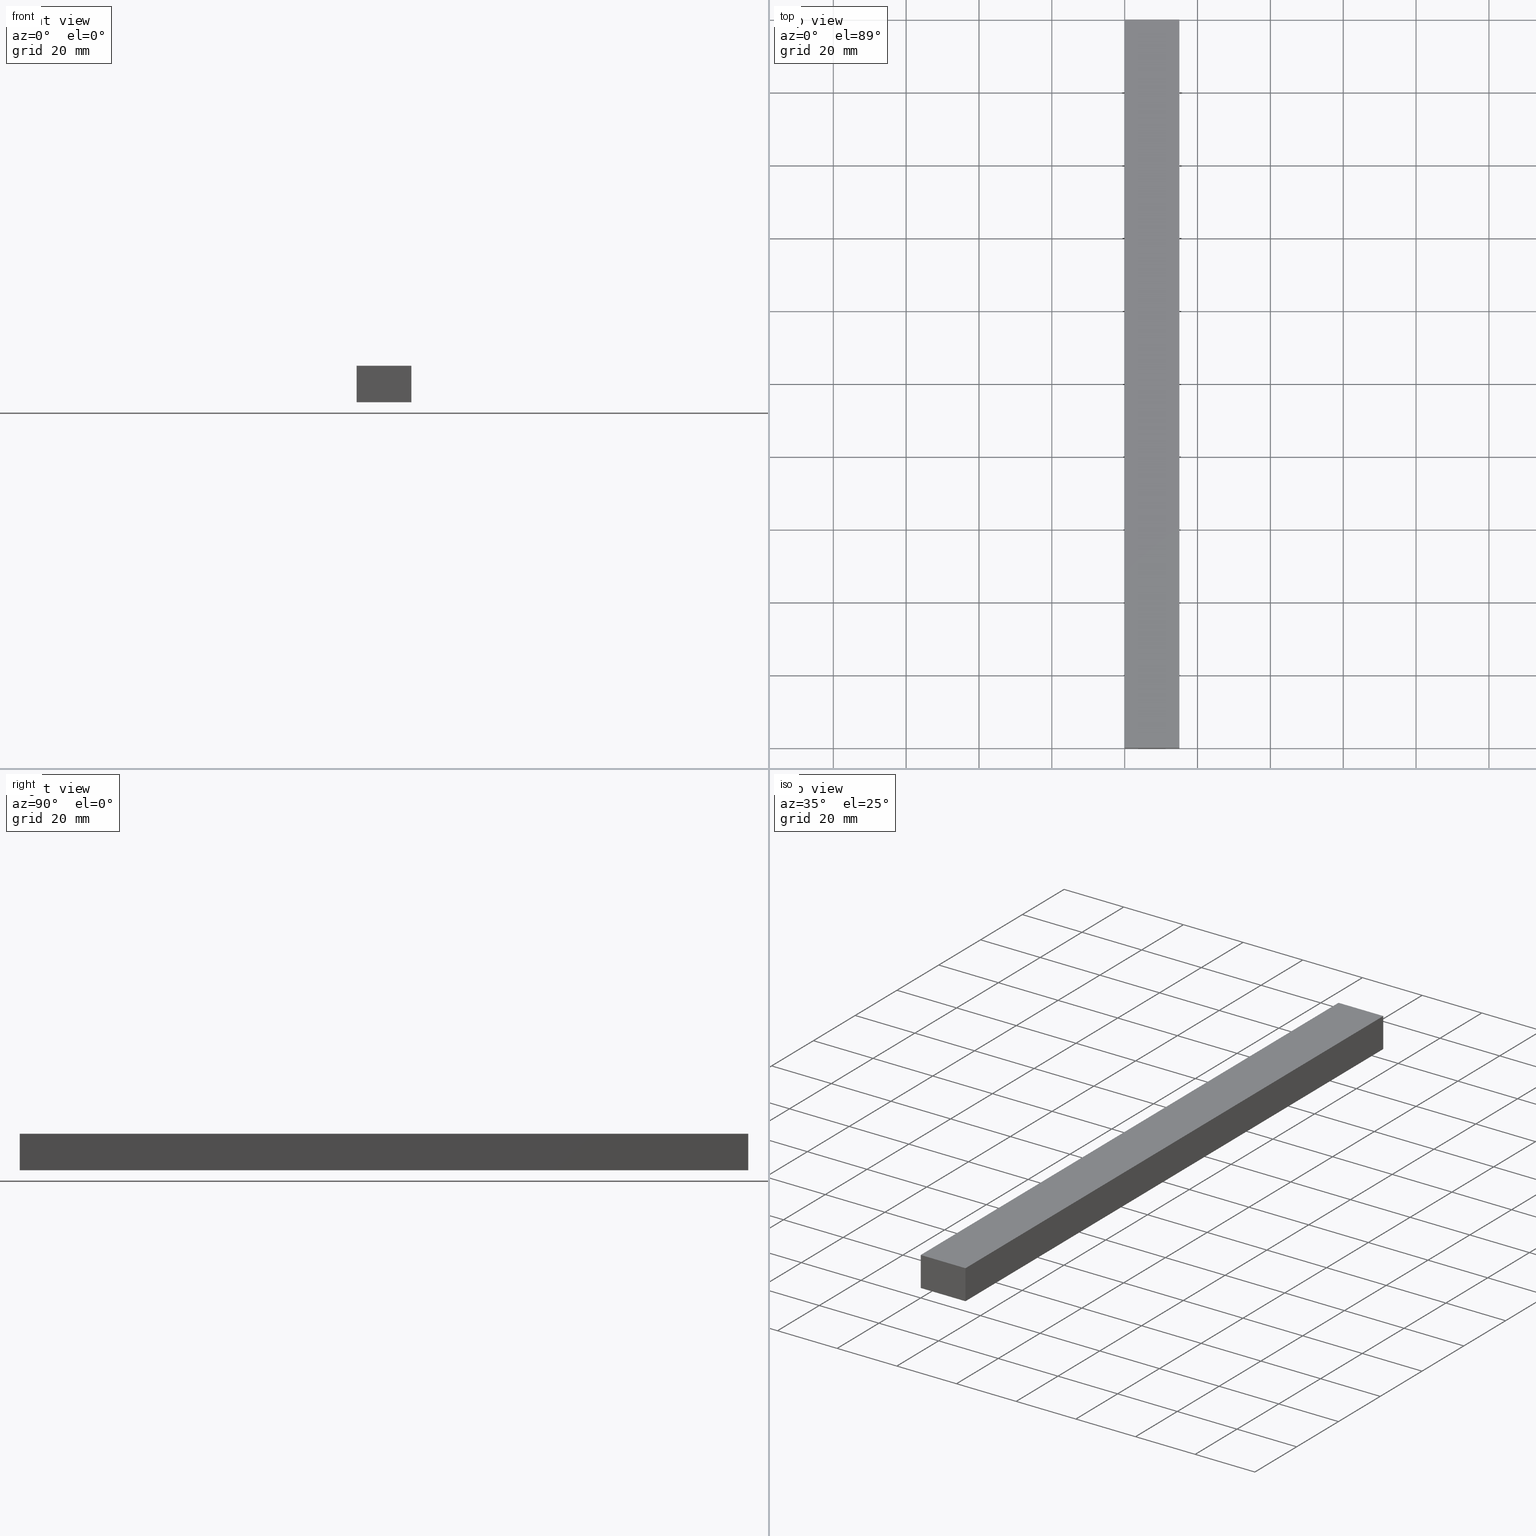
[diagram: canonical four-view strip — front | top / right | iso, engineering-drawing reading convention]
A machine part, canonical four-view strip (front | top / right | iso — engineering-drawing reading convention). The complete STEP part file that produces these views, byte-faithful:
ISO-10303-21;
HEADER;
FILE_DESCRIPTION (( 'STEP AP214' ),
    '1' );
FILE_NAME ('TM_340W_8.STEP',
    '2016-05-09T07:29:31',
    ( '' ),
    ( '' ),
    'SwSTEP 2.0',
    'SolidWorks 2015',
    '' );
FILE_SCHEMA (( 'AUTOMOTIVE_DESIGN' ));
ENDSEC;

DATA;
#1 = ORIENTED_EDGE ( 'NONE', *, *, #122, .F. ) ;
#2 = APPLICATION_CONTEXT ( 'automotive_design' ) ;
#3 = EDGE_CURVE ( 'NONE', #49, #201, #164, .T. ) ;
#4 = EDGE_CURVE ( 'NONE', #197, #187, #140, .T. ) ;
#5 = APPLICATION_CONTEXT ( 'automotive_design' ) ;
#6 = LINE ( 'NONE', #162, #161 ) ;
#7 = VERTEX_POINT ( 'NONE', #188 ) ;
#8 = SHAPE_DEFINITION_REPRESENTATION ( #23, #170 ) ;
#9 = DIRECTION ( 'NONE',  ( -0.0000000000000000000, -0.0000000000000000000, 1.000000000000000000 ) ) ;
#10 = ORIENTED_EDGE ( 'NONE', *, *, #231, .F. ) ;
#11 = ADVANCED_BREP_SHAPE_REPRESENTATION ( '', ( #200, #215 ), #208 ) ;
#12 = ADVANCED_FACE ( 'NONE', ( #210 ), #29, .F. ) ;
#13 = EDGE_LOOP ( 'NONE', ( #52, #1, #153, #193 ) ) ;
#14 = LINE ( 'NONE', #54, #176 ) ;
#15 = CARTESIAN_POINT ( 'NONE',  ( 15.00000000000000000, 1000.000000000000000, 0.0000000000000000000 ) ) ;
#16 = CARTESIAN_POINT ( 'NONE',  ( 0.0000000000000000000, 200.0000000000000000, 0.0000000000000000000 ) ) ;
#17 = DIRECTION ( 'NONE',  ( 0.0000000000000000000, 0.0000000000000000000, 1.000000000000000000 ) ) ;
#18 = ORIENTED_EDGE ( 'NONE', *, *, #185, .F. ) ;
#19 = PRESENTATION_STYLE_ASSIGNMENT (( #93 ) ) ;
#20 = VECTOR ( 'NONE', #237, 1000.000000000000000 ) ;
#21 = STYLED_ITEM ( 'NONE', ( #33 ), #11 ) ;
#22 = SURFACE_STYLE_FILL_AREA ( #43 ) ;
#23 = PRODUCT_DEFINITION_SHAPE ( 'NONE', 'NONE',  #102 ) ;
#24 = VECTOR ( 'NONE', #192, 1000.000000000000000 ) ;
#25 = CARTESIAN_POINT ( 'NONE',  ( 0.0000000000000000000, 1000.000000000000000, 10.00000000000000000 ) ) ;
#26 = ADVANCED_FACE ( 'NONE', ( #157 ), #90, .T. ) ;
#27 = DIRECTION ( 'NONE',  ( 0.0000000000000000000, 0.0000000000000000000, 1.000000000000000000 ) ) ;
#28 =( LENGTH_UNIT ( ) NAMED_UNIT ( * ) SI_UNIT ( .MILLI., .METRE. ) );
#29 = PLANE ( 'NONE',  #163 ) ;
#30 = VERTEX_POINT ( 'NONE', #61 ) ;
#31 = CARTESIAN_POINT ( 'NONE',  ( 0.0000000000000000000, 0.0000000000000000000, 0.0000000000000000000 ) ) ;
#32 = AXIS2_PLACEMENT_3D ( 'NONE', #238, #17, #174 ) ;
#33 = PRESENTATION_STYLE_ASSIGNMENT (( #47 ) ) ;
#34 = ORIENTED_EDGE ( 'NONE', *, *, #85, .T. ) ;
#35 = PRODUCT_DEFINITION_FORMATION_WITH_SPECIFIED_SOURCE ( 'ANY', '', #50, .NOT_KNOWN. ) ;
#36 = VECTOR ( 'NONE', #136, 1000.000000000000000 ) ;
#37 = SHAPE_REPRESENTATION_RELATIONSHIP ( 'NONE' , 'NONE' ,  #97, #11 ) ;
#38 = DIRECTION ( 'NONE',  ( 1.000000000000000000, -0.0000000000000000000, -0.0000000000000000000 ) ) ;
#39 = AXIS2_PLACEMENT_3D ( 'NONE', #25, #184, #77 ) ;
#40 = AXIS2_PLACEMENT_3D ( 'NONE', #31, #171, #196 ) ;
#41 = VECTOR ( 'NONE', #194, 1000.000000000000000 ) ;
#42 = ADVANCED_FACE ( 'NONE', ( #177 ), #186, .T. ) ;
#43 = FILL_AREA_STYLE ('',( #216 ) ) ;
#44 = CARTESIAN_POINT ( 'NONE',  ( 0.0000000000000000000, 0.0000000000000000000, 10.00000000000000000 ) ) ;
#45 = CARTESIAN_POINT ( 'NONE',  ( 0.0000000000000000000, 0.0000000000000000000, 0.0000000000000000000 ) ) ;
#46 =( NAMED_UNIT ( * ) PLANE_ANGLE_UNIT ( ) SI_UNIT ( $, .RADIAN. ) );
#47 = SURFACE_STYLE_USAGE ( .BOTH. , #195 ) ;
#48 = DIRECTION ( 'NONE',  ( 0.0000000000000000000, 0.0000000000000000000, 1.000000000000000000 ) ) ;
#49 = VERTEX_POINT ( 'NONE', #58 ) ;
#50 = PRODUCT ( 'rubber foam', 'rubber foam', '', ( #131 ) ) ;
#51 = LINE ( 'NONE', #84, #126 ) ;
#52 = ORIENTED_EDGE ( 'NONE', *, *, #179, .F. ) ;
#53 = EDGE_LOOP ( 'NONE', ( #129, #92, #34, #106 ) ) ;
#54 = CARTESIAN_POINT ( 'NONE',  ( 15.00000000000000000, 200.0000000000000000, 0.0000000000000000000 ) ) ;
#55 = DIRECTION ( 'NONE',  ( 1.000000000000000000, 0.0000000000000000000, 0.0000000000000000000 ) ) ;
#56 = LINE ( 'NONE', #141, #108 ) ;
#57 = CARTESIAN_POINT ( 'NONE',  ( 0.0000000000000000000, 1000.000000000000000, 0.0000000000000000000 ) ) ;
#58 = CARTESIAN_POINT ( 'NONE',  ( 0.0000000000000000000, 200.0000000000000000, 10.00000000000000000 ) ) ;
#59 = VERTEX_POINT ( 'NONE', #211 ) ;
#60 = CARTESIAN_POINT ( 'NONE',  ( 0.0000000000000000000, 0.0000000000000000000, 0.0000000000000000000 ) ) ;
#61 = CARTESIAN_POINT ( 'NONE',  ( 15.00000000000000000, 0.0000000000000000000, 10.00000000000000000 ) ) ;
#62 = AXIS2_PLACEMENT_3D ( 'NONE', #15, #228, #227 ) ;
#63 = COLOUR_RGB ( '',0.7921568627450980000, 0.8196078431372548800, 0.9333333333333333500 ) ;
#64 = UNCERTAINTY_MEASURE_WITH_UNIT (LENGTH_MEASURE( 1.000000000000000100E-005 ), #28, 'distance_accuracy_value', 'NONE');
#65 = PLANE ( 'NONE',  #39 ) ;
#66 =( LENGTH_UNIT ( ) NAMED_UNIT ( * ) SI_UNIT ( .MILLI., .METRE. ) );
#67 = DIRECTION ( 'NONE',  ( -0.0000000000000000000, 1.000000000000000000, 0.0000000000000000000 ) ) ;
#68 =( LENGTH_UNIT ( ) NAMED_UNIT ( * ) SI_UNIT ( .MILLI., .METRE. ) );
#69 = LINE ( 'NONE', #152, #41 ) ;
#70 = ADVANCED_FACE ( 'NONE', ( #234 ), #133, .T. ) ;
#71 = PRESENTATION_LAYER_ASSIGNMENT (  '', '', ( #212 ) ) ;
#72 = LINE ( 'NONE', #74, #101 ) ;
#73 = EDGE_LOOP ( 'NONE', ( #114, #145, #147, #110 ) ) ;
#74 = CARTESIAN_POINT ( 'NONE',  ( 0.0000000000000000000, 200.0000000000000000, 0.0000000000000000000 ) ) ;
#75 = CARTESIAN_POINT ( 'NONE',  ( 15.00000000000000000, 200.0000000000000000, 0.0000000000000000000 ) ) ;
#76 = EDGE_CURVE ( 'NONE', #7, #49, #69, .T. ) ;
#77 = DIRECTION ( 'NONE',  ( 0.0000000000000000000, 0.0000000000000000000, 1.000000000000000000 ) ) ;
#78 = ORIENTED_EDGE ( 'NONE', *, *, #226, .F. ) ;
#79 = AXIS2_PLACEMENT_3D ( 'NONE', #111, #180, #55 ) ;
#80 =( NAMED_UNIT ( * ) SI_UNIT ( $, .STERADIAN. ) SOLID_ANGLE_UNIT ( ) );
#81 = ITEM_DEFINED_TRANSFORMATION ( 'NONE', 'NONE', #40,  #215 ) ;
#82 =( NAMED_UNIT ( * ) SI_UNIT ( $, .STERADIAN. ) SOLID_ANGLE_UNIT ( ) );
#83 = VECTOR ( 'NONE', #91, 1000.000000000000000 ) ;
#84 = CARTESIAN_POINT ( 'NONE',  ( 15.00000000000000000, 0.0000000000000000000, 0.0000000000000000000 ) ) ;
#85 = EDGE_CURVE ( 'NONE', #30, #201, #6, .T. ) ;
#86 = APPLICATION_CONTEXT ( 'automotive_design' ) ;
#87 =( REPRESENTATION_RELATIONSHIP ('NONE','NONE', #170, #97 ) REPRESENTATION_RELATIONSHIP_WITH_TRANSFORMATION ( #81 )SHAPE_REPRESENTATION_RELATIONSHIP( ) );
#88 = VERTEX_POINT ( 'NONE', #75 ) ;
#89 = SHAPE_DEFINITION_REPRESENTATION ( #203, #97 ) ;
#90 = PLANE ( 'NONE',  #181 ) ;
#91 = DIRECTION ( 'NONE',  ( 0.0000000000000000000, -1.000000000000000000, 0.0000000000000000000 ) ) ;
#92 = ORIENTED_EDGE ( 'NONE', *, *, #179, .T. ) ;
#93 = SURFACE_STYLE_USAGE ( .BOTH. , #224 ) ;
#94 = CLOSED_SHELL ( 'NONE', ( #26, #42, #70, #149, #232, #12 ) ) ;
#95 = EDGE_CURVE ( 'NONE', #49, #197, #72, .T. ) ;
#96 = DIRECTION ( 'NONE',  ( -0.0000000000000000000, -0.0000000000000000000, -1.000000000000000000 ) ) ;
#97 = SHAPE_REPRESENTATION ( 'rubber foam', ( #215 ), #208 ) ;
#98 = DIRECTION ( 'NONE',  ( 0.0000000000000000000, 0.0000000000000000000, 1.000000000000000000 ) ) ;
#99 = AXIS2_PLACEMENT_3D ( 'NONE', #139, #98, #204 ) ;
#100 = CARTESIAN_POINT ( 'NONE',  ( 0.0000000000000000000, 1000.000000000000000, 0.0000000000000000000 ) ) ;
#101 = VECTOR ( 'NONE', #96, 1000.000000000000000 ) ;
#102 = PRODUCT_DEFINITION ( 'UNKNOWN', '', #120, #119 ) ;
#103 = CARTESIAN_POINT ( 'NONE',  ( 15.00000000000000000, 1000.000000000000000, 10.00000000000000000 ) ) ;
#104 = APPLICATION_CONTEXT ( 'automotive_design' ) ;
#105 =( NAMED_UNIT ( * ) PLANE_ANGLE_UNIT ( ) SI_UNIT ( $, .RADIAN. ) );
#106 = ORIENTED_EDGE ( 'NONE', *, *, #226, .T. ) ;
#107 =( GEOMETRIC_REPRESENTATION_CONTEXT ( 3 ) GLOBAL_UNCERTAINTY_ASSIGNED_CONTEXT ( ( #169 ) ) GLOBAL_UNIT_ASSIGNED_CONTEXT ( ( #66, #105, #117 ) ) REPRESENTATION_CONTEXT ( 'NONE', 'WORKASPACE' ) );
#108 = VECTOR ( 'NONE', #116, 1000.000000000000000 ) ;
#109 = ORIENTED_EDGE ( 'NONE', *, *, #122, .T. ) ;
#110 = ORIENTED_EDGE ( 'NONE', *, *, #3, .T. ) ;
#111 = CARTESIAN_POINT ( 'NONE',  ( 0.0000000000000000000, 200.0000000000000000, 0.0000000000000000000 ) ) ;
#112 = UNCERTAINTY_MEASURE_WITH_UNIT (LENGTH_MEASURE( 1.000000000000000100E-005 ), #235, 'distance_accuracy_value', 'NONE');
#113 = CARTESIAN_POINT ( 'NONE',  ( 15.00000000000000000, 1000.000000000000000, 0.0000000000000000000 ) ) ;
#114 = ORIENTED_EDGE ( 'NONE', *, *, #85, .F. ) ;
#115 = CARTESIAN_POINT ( 'NONE',  ( 0.0000000000000000000, 0.0000000000000000000, 0.0000000000000000000 ) ) ;
#116 = DIRECTION ( 'NONE',  ( 1.000000000000000000, -0.0000000000000000000, -0.0000000000000000000 ) ) ;
#117 =( NAMED_UNIT ( * ) SI_UNIT ( $, .STERADIAN. ) SOLID_ANGLE_UNIT ( ) );
#118 = ORIENTED_EDGE ( 'NONE', *, *, #4, .F. ) ;
#119 = PRODUCT_DEFINITION_CONTEXT ( 'detailed design', #5, 'design' ) ;
#120 = PRODUCT_DEFINITION_FORMATION_WITH_SPECIFIED_SOURCE ( 'ANY', '', #127, .NOT_KNOWN. ) ;
#121 =( GEOMETRIC_REPRESENTATION_CONTEXT ( 3 ) GLOBAL_UNCERTAINTY_ASSIGNED_CONTEXT ( ( #112 ) ) GLOBAL_UNIT_ASSIGNED_CONTEXT ( ( #235, #166, #82 ) ) REPRESENTATION_CONTEXT ( 'NONE', 'WORKASPACE' ) );
#122 = EDGE_CURVE ( 'NONE', #88, #59, #168, .T. ) ;
#123 = APPLICATION_PROTOCOL_DEFINITION ( 'draft international standard', 'automotive_design', 1998, #104 ) ;
#124 =( GEOMETRIC_REPRESENTATION_CONTEXT ( 3 ) GLOBAL_UNCERTAINTY_ASSIGNED_CONTEXT ( ( #214 ) ) GLOBAL_UNIT_ASSIGNED_CONTEXT ( ( #68, #220, #143 ) ) REPRESENTATION_CONTEXT ( 'NONE', 'WORKASPACE' ) );
#125 = VECTOR ( 'NONE', #229, 1000.000000000000000 ) ;
#126 = VECTOR ( 'NONE', #132, 1000.000000000000000 ) ;
#127 = PRODUCT ( 'TM_340W_8', 'TM_340W_8', '', ( #223 ) ) ;
#128 = PRODUCT_RELATED_PRODUCT_CATEGORY ( 'part', '', ( #50 ) ) ;
#129 = ORIENTED_EDGE ( 'NONE', *, *, #191, .T. ) ;
#130 = APPLICATION_PROTOCOL_DEFINITION ( 'draft international standard', 'automotive_design', 1998, #86 ) ;
#131 = PRODUCT_CONTEXT ( 'NONE', #104, 'mechanical' ) ;
#132 = DIRECTION ( 'NONE',  ( -0.0000000000000000000, -0.0000000000000000000, 1.000000000000000000 ) ) ;
#133 = PLANE ( 'NONE',  #99 ) ;
#134 = ORIENTED_EDGE ( 'NONE', *, *, #95, .T. ) ;
#135 = CARTESIAN_POINT ( 'NONE',  ( 0.0000000000000000000, 1000.000000000000000, 10.00000000000000000 ) ) ;
#136 = DIRECTION ( 'NONE',  ( 0.0000000000000000000, -1.000000000000000000, 0.0000000000000000000 ) ) ;
#137 = FILL_AREA_STYLE_COLOUR ( '', #63 ) ;
#138 = DIRECTION ( 'NONE',  ( -1.000000000000000000, 0.0000000000000000000, 0.0000000000000000000 ) ) ;
#139 = CARTESIAN_POINT ( 'NONE',  ( 15.00000000000000000, 1000.000000000000000, 10.00000000000000000 ) ) ;
#140 = LINE ( 'NONE', #57, #24 ) ;
#141 = CARTESIAN_POINT ( 'NONE',  ( 0.0000000000000000000, 200.0000000000000000, 0.0000000000000000000 ) ) ;
#142 = ORIENTED_EDGE ( 'NONE', *, *, #4, .T. ) ;
#143 =( NAMED_UNIT ( * ) SI_UNIT ( $, .STERADIAN. ) SOLID_ANGLE_UNIT ( ) );
#144 = ORIENTED_EDGE ( 'NONE', *, *, #95, .F. ) ;
#145 = ORIENTED_EDGE ( 'NONE', *, *, #205, .F. ) ;
#146 = PRODUCT_RELATED_PRODUCT_CATEGORY ( 'part', '', ( #127 ) ) ;
#147 = ORIENTED_EDGE ( 'NONE', *, *, #76, .T. ) ;
#148 = PRESENTATION_LAYER_ASSIGNMENT (  '', '', ( #21 ) ) ;
#149 = ADVANCED_FACE ( 'NONE', ( #150 ), #65, .T. ) ;
#150 = FACE_OUTER_BOUND ( 'NONE', #221, .T. ) ;
#151 = DIRECTION ( 'NONE',  ( 0.0000000000000000000, 0.0000000000000000000, -1.000000000000000000 ) ) ;
#152 = CARTESIAN_POINT ( 'NONE',  ( 0.0000000000000000000, 200.0000000000000000, 10.00000000000000000 ) ) ;
#153 = ORIENTED_EDGE ( 'NONE', *, *, #231, .T. ) ;
#154 = SURFACE_STYLE_FILL_AREA ( #155 ) ;
#155 = FILL_AREA_STYLE ('',( #137 ) ) ;
#156 = DIRECTION ( 'NONE',  ( 1.000000000000000000, 0.0000000000000000000, 0.0000000000000000000 ) ) ;
#157 = FACE_OUTER_BOUND ( 'NONE', #222, .T. ) ;
#158 = APPLICATION_PROTOCOL_DEFINITION ( 'draft international standard', 'automotive_design', 1998, #5 ) ;
#159 = PRODUCT_DEFINITION_SHAPE ( 'NONE', 'NONE',  #239 ) ;
#160 = ORIENTED_EDGE ( 'NONE', *, *, #3, .F. ) ;
#161 = VECTOR ( 'NONE', #209, 1000.000000000000000 ) ;
#162 = CARTESIAN_POINT ( 'NONE',  ( 0.0000000000000000000, 0.0000000000000000000, 10.00000000000000000 ) ) ;
#163 = AXIS2_PLACEMENT_3D ( 'NONE', #189, #67, #182 ) ;
#164 = LINE ( 'NONE', #135, #20 ) ;
#165 = PRODUCT_DEFINITION_CONTEXT ( 'detailed design', #86, 'design' ) ;
#166 =( NAMED_UNIT ( * ) PLANE_ANGLE_UNIT ( ) SI_UNIT ( $, .RADIAN. ) );
#167 = LINE ( 'NONE', #103, #83 ) ;
#168 = LINE ( 'NONE', #113, #36 ) ;
#169 = UNCERTAINTY_MEASURE_WITH_UNIT (LENGTH_MEASURE( 1.000000000000000100E-005 ), #66, 'distance_accuracy_value', 'NONE');
#170 = SHAPE_REPRESENTATION ( 'TM_340W_8', ( #213, #40 ), #107 ) ;
#171 = DIRECTION ( 'NONE',  ( 0.0000000000000000000, 0.0000000000000000000, 1.000000000000000000 ) ) ;
#172 = EDGE_LOOP ( 'NONE', ( #18, #144, #230, #10 ) ) ;
#173 = DIRECTION ( 'NONE',  ( 1.000000000000000000, 0.0000000000000000000, 0.0000000000000000000 ) ) ;
#174 = DIRECTION ( 'NONE',  ( 1.000000000000000000, 0.0000000000000000000, 0.0000000000000000000 ) ) ;
#175 = APPLICATION_PROTOCOL_DEFINITION ( 'draft international standard', 'automotive_design', 1998, #2 ) ;
#176 = VECTOR ( 'NONE', #9, 1000.000000000000000 ) ;
#177 = FACE_OUTER_BOUND ( 'NONE', #13, .T. ) ;
#178 = ORIENTED_EDGE ( 'NONE', *, *, #191, .F. ) ;
#179 = EDGE_CURVE ( 'NONE', #59, #30, #51, .T. ) ;
#180 = DIRECTION ( 'NONE',  ( -0.0000000000000000000, 1.000000000000000000, 0.0000000000000000000 ) ) ;
#181 = AXIS2_PLACEMENT_3D ( 'NONE', #100, #151, #138 ) ;
#182 = DIRECTION ( 'NONE',  ( 1.000000000000000000, 0.0000000000000000000, 0.0000000000000000000 ) ) ;
#183 = MECHANICAL_DESIGN_GEOMETRIC_PRESENTATION_REPRESENTATION (  '', ( #212 ), #121 ) ;
#184 = DIRECTION ( 'NONE',  ( -1.000000000000000000, 0.0000000000000000000, 0.0000000000000000000 ) ) ;
#185 = EDGE_CURVE ( 'NONE', #197, #88, #56, .T. ) ;
#186 = PLANE ( 'NONE',  #62 ) ;
#187 = VERTEX_POINT ( 'NONE', #45 ) ;
#188 = CARTESIAN_POINT ( 'NONE',  ( 15.00000000000000000, 200.0000000000000000, 10.00000000000000000 ) ) ;
#189 = CARTESIAN_POINT ( 'NONE',  ( 0.0000000000000000000, 0.0000000000000000000, 0.0000000000000000000 ) ) ;
#190 = PLANE ( 'NONE',  #79 ) ;
#191 = EDGE_CURVE ( 'NONE', #187, #59, #199, .T. ) ;
#192 = DIRECTION ( 'NONE',  ( 0.0000000000000000000, -1.000000000000000000, 0.0000000000000000000 ) ) ;
#193 = ORIENTED_EDGE ( 'NONE', *, *, #205, .T. ) ;
#194 = DIRECTION ( 'NONE',  ( -1.000000000000000000, -0.0000000000000000000, -0.0000000000000000000 ) ) ;
#195 = SURFACE_SIDE_STYLE ('',( #22 ) ) ;
#196 = DIRECTION ( 'NONE',  ( 1.000000000000000000, 0.0000000000000000000, 0.0000000000000000000 ) ) ;
#197 = VERTEX_POINT ( 'NONE', #16 ) ;
#198 = ORIENTED_EDGE ( 'NONE', *, *, #185, .T. ) ;
#199 = LINE ( 'NONE', #207, #206 ) ;
#200 = MANIFOLD_SOLID_BREP ( '���߰�1', #94 ) ;
#201 = VERTEX_POINT ( 'NONE', #44 ) ;
#202 = MECHANICAL_DESIGN_GEOMETRIC_PRESENTATION_REPRESENTATION (  '', ( #21 ), #124 ) ;
#203 = PRODUCT_DEFINITION_SHAPE ( 'NONE', 'NONE',  #218 ) ;
#204 = DIRECTION ( 'NONE',  ( 1.000000000000000000, 0.0000000000000000000, 0.0000000000000000000 ) ) ;
#205 = EDGE_CURVE ( 'NONE', #7, #30, #167, .T. ) ;
#206 = VECTOR ( 'NONE', #38, 1000.000000000000000 ) ;
#207 = CARTESIAN_POINT ( 'NONE',  ( 0.0000000000000000000, 0.0000000000000000000, 0.0000000000000000000 ) ) ;
#208 =( GEOMETRIC_REPRESENTATION_CONTEXT ( 3 ) GLOBAL_UNCERTAINTY_ASSIGNED_CONTEXT ( ( #64 ) ) GLOBAL_UNIT_ASSIGNED_CONTEXT ( ( #28, #46, #80 ) ) REPRESENTATION_CONTEXT ( 'NONE', 'WORKASPACE' ) );
#209 = DIRECTION ( 'NONE',  ( -1.000000000000000000, -0.0000000000000000000, -0.0000000000000000000 ) ) ;
#210 = FACE_OUTER_BOUND ( 'NONE', #53, .T. ) ;
#211 = CARTESIAN_POINT ( 'NONE',  ( 15.00000000000000000, 0.0000000000000000000, 0.0000000000000000000 ) ) ;
#212 = STYLED_ITEM ( 'NONE', ( #19 ), #200 ) ;
#213 = AXIS2_PLACEMENT_3D ( 'NONE', #60, #48, #156 ) ;
#214 = UNCERTAINTY_MEASURE_WITH_UNIT (LENGTH_MEASURE( 1.000000000000000100E-005 ), #68, 'distance_accuracy_value', 'NONE');
#215 = AXIS2_PLACEMENT_3D ( 'NONE', #115, #27, #173 ) ;
#216 = FILL_AREA_STYLE_COLOUR ( '', #217 ) ;
#217 = COLOUR_RGB ( '',0.7921568627450980000, 0.8196078431372548800, 0.9333333333333333500 ) ;
#218 = PRODUCT_DEFINITION ( 'UNKNOWN', '', #35, #165 ) ;
#219 = CARTESIAN_POINT ( 'NONE',  ( 0.0000000000000000000, 0.0000000000000000000, 0.0000000000000000000 ) ) ;
#220 =( NAMED_UNIT ( * ) PLANE_ANGLE_UNIT ( ) SI_UNIT ( $, .RADIAN. ) );
#221 = EDGE_LOOP ( 'NONE', ( #78, #160, #134, #142 ) ) ;
#222 = EDGE_LOOP ( 'NONE', ( #178, #118, #198, #109 ) ) ;
#223 = PRODUCT_CONTEXT ( 'NONE', #2, 'mechanical' ) ;
#224 = SURFACE_SIDE_STYLE ('',( #154 ) ) ;
#225 = LINE ( 'NONE', #219, #125 ) ;
#226 = EDGE_CURVE ( 'NONE', #201, #187, #225, .T. ) ;
#227 = DIRECTION ( 'NONE',  ( 0.0000000000000000000, 0.0000000000000000000, -1.000000000000000000 ) ) ;
#228 = DIRECTION ( 'NONE',  ( 1.000000000000000000, 0.0000000000000000000, 0.0000000000000000000 ) ) ;
#229 = DIRECTION ( 'NONE',  ( -0.0000000000000000000, -0.0000000000000000000, -1.000000000000000000 ) ) ;
#230 = ORIENTED_EDGE ( 'NONE', *, *, #76, .F. ) ;
#231 = EDGE_CURVE ( 'NONE', #88, #7, #14, .T. ) ;
#232 = ADVANCED_FACE ( 'NONE', ( #233 ), #190, .T. ) ;
#233 = FACE_OUTER_BOUND ( 'NONE', #172, .T. ) ;
#234 = FACE_OUTER_BOUND ( 'NONE', #73, .T. ) ;
#235 =( LENGTH_UNIT ( ) NAMED_UNIT ( * ) SI_UNIT ( .MILLI., .METRE. ) );
#236 = CONTEXT_DEPENDENT_SHAPE_REPRESENTATION ( #87, #159 ) ;
#237 = DIRECTION ( 'NONE',  ( 0.0000000000000000000, -1.000000000000000000, 0.0000000000000000000 ) ) ;
#238 = CARTESIAN_POINT ( 'NONE',  ( 0.0000000000000000000, 0.0000000000000000000, 0.0000000000000000000 ) ) ;
#239 = NEXT_ASSEMBLY_USAGE_OCCURRENCE ( 'NAUO1', ' ', ' ', #102, #218, $ ) ;
ENDSEC;
END-ISO-10303-21;
